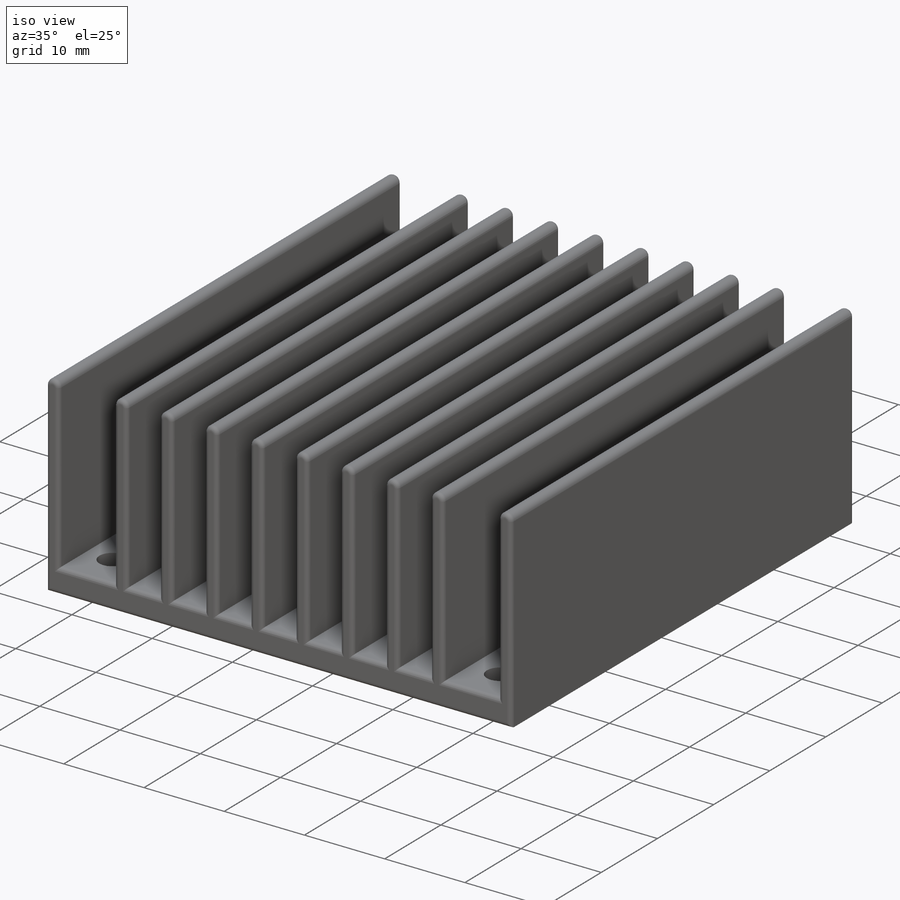
[diagram: iso view]
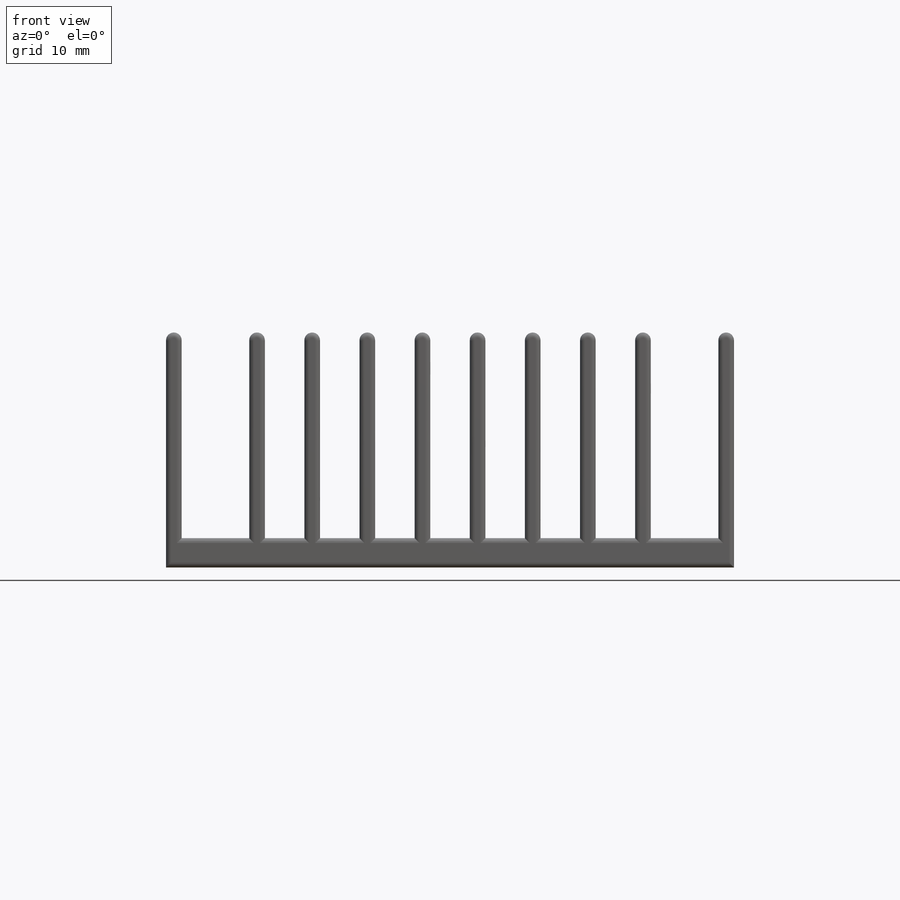
[diagram: front view]
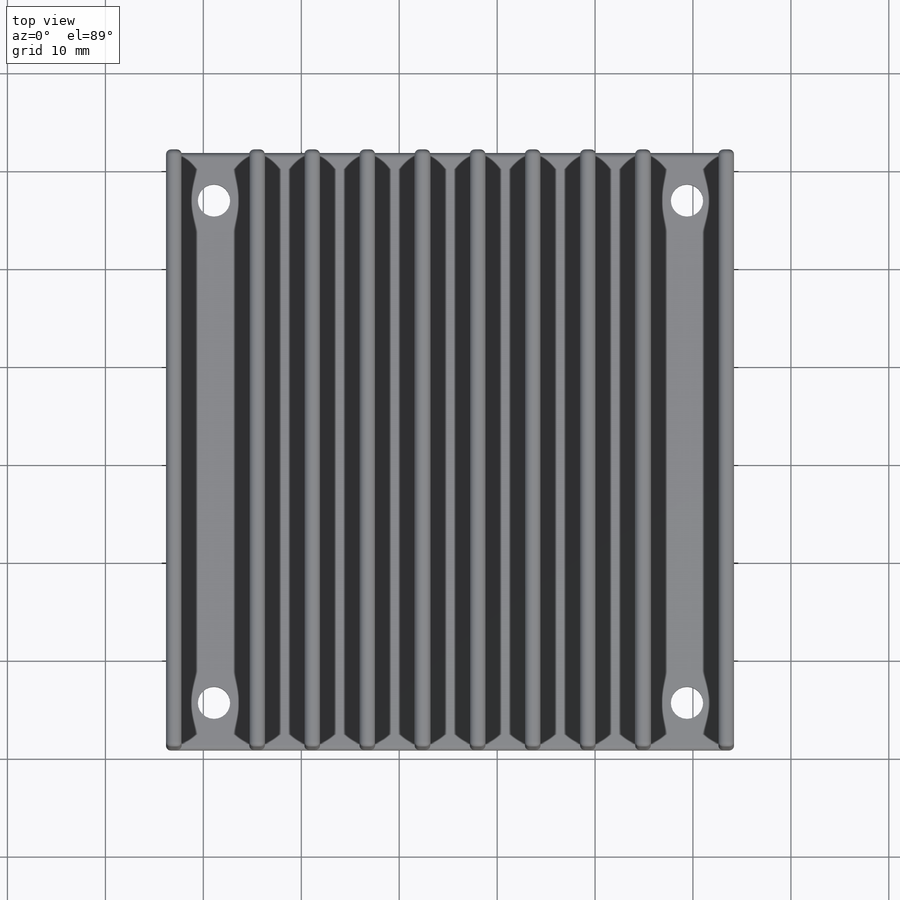
[diagram: top view]
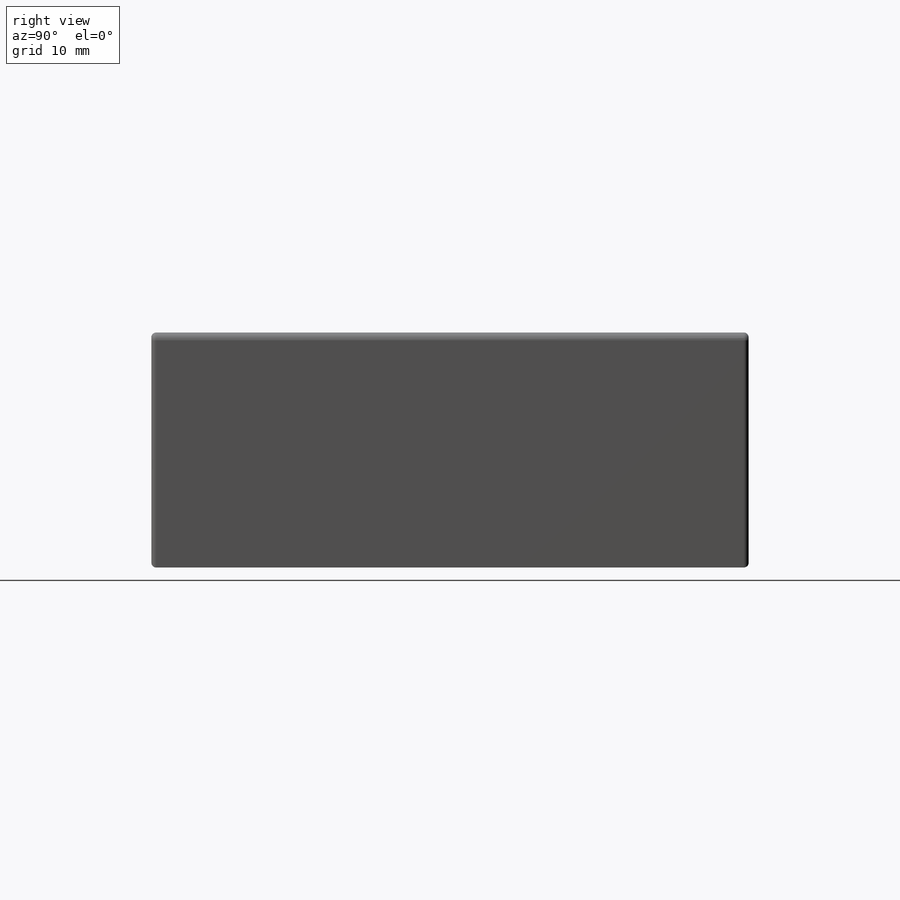
[diagram: right view]
SOLIDWORKS PART (.sldprt)
format: sldprt  version: not decoded by parser v0  size: 513,024 bytes
history: native  units: mm
features: fillet x12, sketch x5, material x1, extrude x1, cut_extrude x1, hole x1 (+11 scaffold rows collapsed)
feature tree (32):
  scaffold x11  (default folders/planes/origin — collapsed)
  material  "Material <not specified>"
  sketch  "Sketch1"  dims[D1=58.0mm D2=61.0mm]
  extrude  "Boss-Extrude1"  Depth=24mm
  sketch  "Sketch2"  dims[c1.D1=1.6mm c1.D2=8.495mm c1.D4=4.03mm c1.D5=1.6mm c1.D7=1.6mm c1.D6=61.0mm c2.D7=1.6mm c2.D6=7.0 c2.D3=2.0]
  cut_extrude  "Cut-Extrude1"  Depth=21mm
  sketch  "Sketch3"  dims[c1.D1=~8.083178mm c1.D2=51.3mm c2.D1=4.85mm c2.D3=48.3mm c2.D4=4.9mm]
  hole  "Ø3.3 (3.3) Diameter Hole1"  Diameter=3.3mm Depth=10mm
  sketch  "3DSketch2"
  sketch  "Sketch7"  dims[hole-wizard template sketch: 47 standard entries collapsed; hole parameters kept: c15.Hole Depth=10.0mm c15.D3=~14.816244mm c15.Drill Angle=118.0deg]
  fillet  "Fillet2"  [1 undecoded]
  fillet  "Fillet3"  [1 undecoded]
  fillet  "Fillet15"  [1 undecoded]
  fillet  "Fillet16"  [1 undecoded]
  fillet  "Fillet17"  [1 undecoded]
  fillet  "Fillet18"  [1 undecoded]
  fillet  "Fillet19"  [1 undecoded]
  fillet  "Fillet20"  [1 undecoded]
  fillet  "Fillet21"  [1 undecoded]
  fillet  "Fillet22"  [1 undecoded]
  fillet  "Fillet13"  Radius=0.5mm
  fillet  "Fillet14"  Radius=0.5mm
decode coverage: 9 of 20 modeling features carry decoded parameters
note: ~ marks probable driven/reference dimensions
note: 10 parameter values undecoded
summary: no parameter record found for 10 features
note: suppression state not decoded; provenance and decode notes live in map.json
